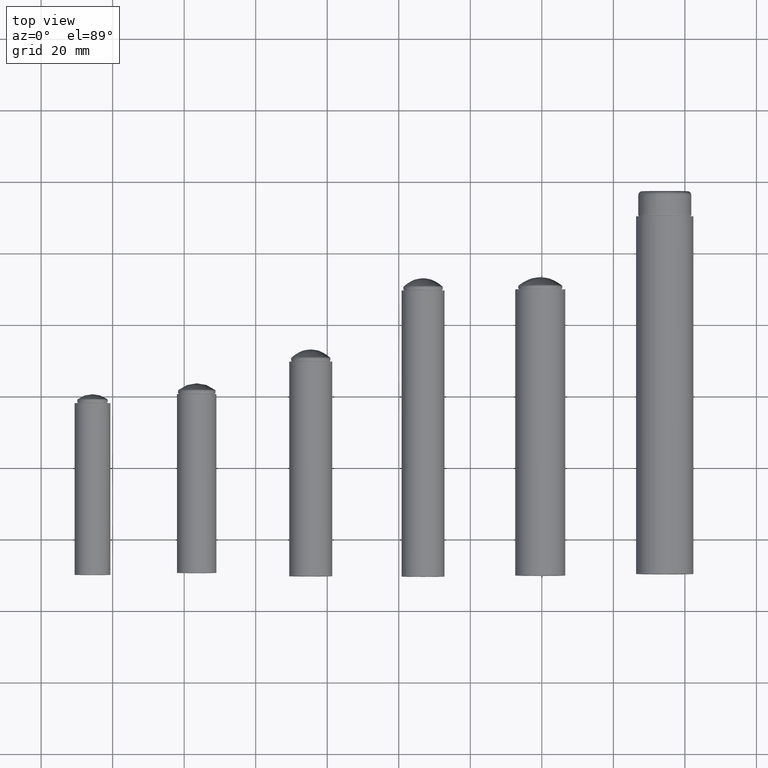
[diagram: clean part render]
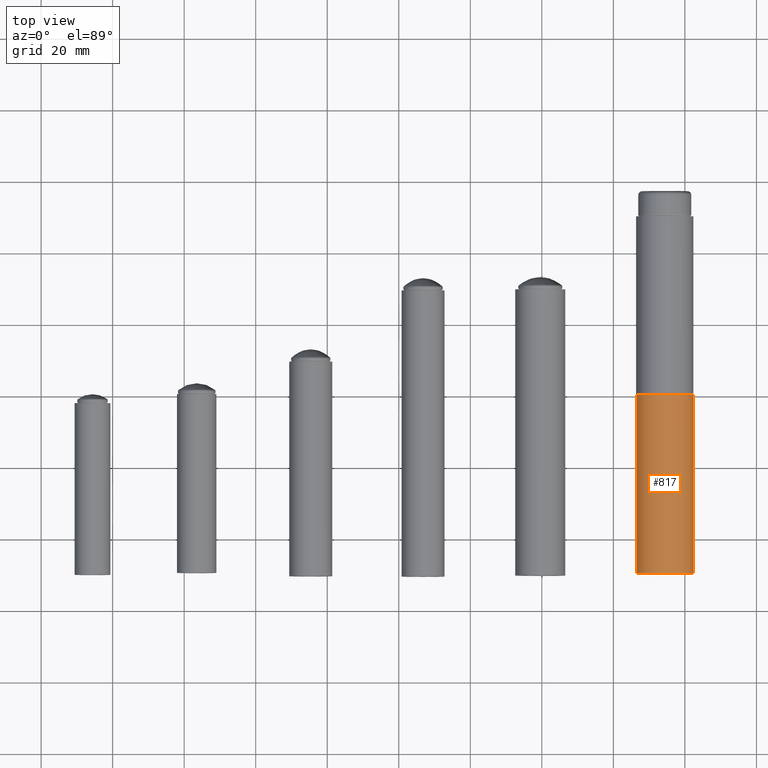
[diagram: same view with one face highlighted and labeled with its STEP entity id]
A machine part, top view. The second image highlights one B-rep face of the part: STEP entity #817.
In plain terms, the highlighted cylindrical surface (bore or boss wall) has radius 8 mm, axis along (0, 1, 0).
Its self-contained STEP definition (entity closure, byte-faithful):
#243=FACE_BOUND('',#420,.T.);
#307=FACE_OUTER_BOUND('',#419,.T.);
#419=EDGE_LOOP('',(#719));
#420=EDGE_LOOP('',(#720));
#489=CIRCLE('',#979,8.);
#490=CIRCLE('',#980,8.);
#549=VERTEX_POINT('',#1538);
#550=VERTEX_POINT('',#1540);
#609=EDGE_CURVE('',#549,#549,#489,.T.);
#610=EDGE_CURVE('',#550,#550,#490,.T.);
#719=ORIENTED_EDGE('',*,*,#609,.T.);
#720=ORIENTED_EDGE('',*,*,#610,.F.);
#758=CYLINDRICAL_SURFACE('',#978,8.);
#817=ADVANCED_FACE('',(#307,#243),#758,.T.);
#978=AXIS2_PLACEMENT_3D('',#1537,#1286,#1287);
#979=AXIS2_PLACEMENT_3D('',#1539,#1288,#1289);
#980=AXIS2_PLACEMENT_3D('',#1541,#1290,#1291);
#1286=DIRECTION('center_axis',(0.,0.,1.));
#1287=DIRECTION('ref_axis',(-1.,0.,0.));
#1288=DIRECTION('center_axis',(0.,0.,-1.));
#1289=DIRECTION('ref_axis',(-1.,0.,0.));
#1290=DIRECTION('center_axis',(0.,0.,-1.));
#1291=DIRECTION('ref_axis',(-1.,0.,0.));
#1537=CARTESIAN_POINT('Origin',(0.,0.,0.));
#1538=CARTESIAN_POINT('',(8.,9.79717439317883E-16,50.));
#1539=CARTESIAN_POINT('Origin',(0.,0.,50.));
#1540=CARTESIAN_POINT('',(8.,9.79717439317883E-16,0.));
#1541=CARTESIAN_POINT('Origin',(0.,0.,0.));